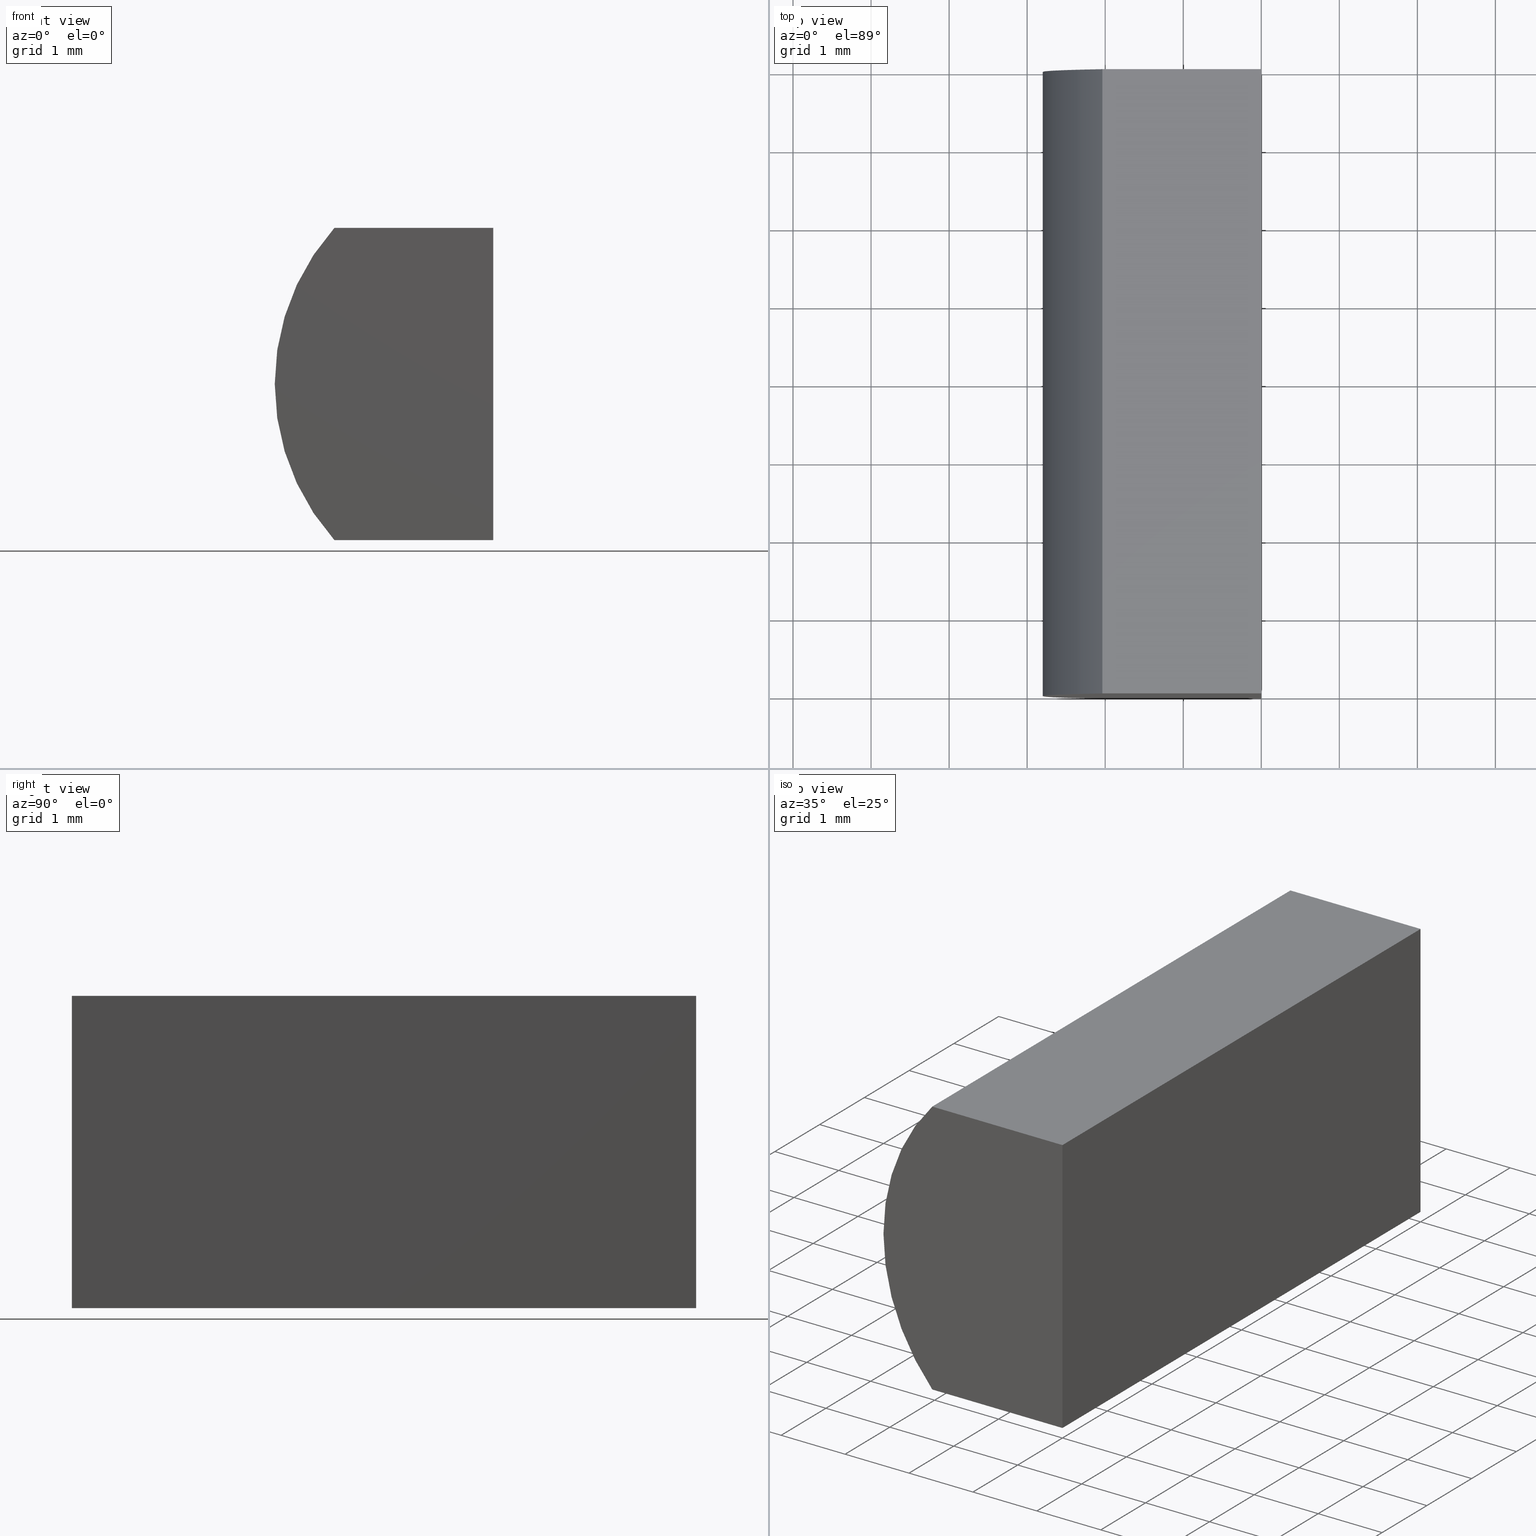
[diagram: canonical four-view strip — front | top / right | iso, engineering-drawing reading convention]
A machine part, canonical four-view strip (front | top / right | iso — engineering-drawing reading convention). The complete STEP part file that produces these views, byte-faithful:
ISO-10303-21;
HEADER;
FILE_DESCRIPTION (( 'STEP AP214' ),
    '1' );
FILE_NAME ('155004.STEP',
    '2019-06-14T05:39:15',
    ( 'user' ),
    ( '΢���й�' ),
    'SwSTEP 2.0',
    'SolidWorks 2016',
    '' );
FILE_SCHEMA (( 'AUTOMOTIVE_DESIGN' ));
ENDSEC;

DATA;
#1 = PLANE ( 'NONE',  #70 ) ;
#2 = EDGE_CURVE ( 'NONE', #172, #158, #85, .T. ) ;
#3 = STYLED_ITEM ( 'NONE', ( #55 ), #11 ) ;
#4 = ORIENTED_EDGE ( 'NONE', *, *, #24, .T. ) ;
#5 = PRODUCT_DEFINITION_CONTEXT ( 'detailed design', #146, 'design' ) ;
#6 = DIRECTION ( 'NONE',  ( 0.0000000000000000000, 1.000000000000000000, 0.0000000000000000000 ) ) ;
#7 = CARTESIAN_POINT ( 'NONE',  ( 0.0000000000000000000, 0.0000000000000000000, 4.000000000000000000 ) ) ;
#8 = AXIS2_PLACEMENT_3D ( 'NONE', #155, #36, #48 ) ;
#9 = DIRECTION ( 'NONE',  ( 0.0000000000000000000, -0.0000000000000000000, 1.000000000000000000 ) ) ;
#10 = ORIENTED_EDGE ( 'NONE', *, *, #201, .F. ) ;
#11 = MANIFOLD_SOLID_BREP ( '͹̨-����1', #186 ) ;
#12 = CARTESIAN_POINT ( 'NONE',  ( -2.036067977499788700, 8.000000000000000000, 4.000000000000000000 ) ) ;
#13 = PRESENTATION_STYLE_ASSIGNMENT (( #123 ) ) ;
#14 = VECTOR ( 'NONE', #162, 1000.000000000000000 ) ;
#15 = PRODUCT_DEFINITION_FORMATION_WITH_SPECIFIED_SOURCE ( '�κ�', '', #64, .NOT_KNOWN. ) ;
#16 = EDGE_CURVE ( 'NONE', #37, #117, #151, .T. ) ;
#17 = VECTOR ( 'NONE', #39, 1000.000000000000000 ) ;
#18 = DIRECTION ( 'NONE',  ( 0.0000000000000000000, 1.000000000000000000, 0.0000000000000000000 ) ) ;
#19 = CARTESIAN_POINT ( 'NONE',  ( 0.0000000000000000000, 0.0000000000000000000, 0.0000000000000000000 ) ) ;
#20 = VECTOR ( 'NONE', #89, 1000.000000000000000 ) ;
#21 = STYLED_ITEM ( 'NONE', ( #13 ), #152 ) ;
#22 = FACE_OUTER_BOUND ( 'NONE', #143, .T. ) ;
#23 = CARTESIAN_POINT ( 'NONE',  ( -2.036067977499787900, 8.000000000000000000, -4.336808689942017700E-016 ) ) ;
#24 = EDGE_CURVE ( 'NONE', #172, #33, #69, .T. ) ;
#25 = SURFACE_SIDE_STYLE ('',( #49 ) ) ;
#26 = SHAPE_DEFINITION_REPRESENTATION ( #110, #152 ) ;
#27 = ORIENTED_EDGE ( 'NONE', *, *, #71, .F. ) ;
#28 = PLANE ( 'NONE',  #78 ) ;
#29 = CARTESIAN_POINT ( 'NONE',  ( 0.0000000000000000000, 8.000000000000000000, 0.0000000000000000000 ) ) ;
#30 = EDGE_CURVE ( 'NONE', #132, #32, #179, .T. ) ;
#31 = ORIENTED_EDGE ( 'NONE', *, *, #24, .F. ) ;
#32 = VERTEX_POINT ( 'NONE', #148 ) ;
#33 = VERTEX_POINT ( 'NONE', #149 ) ;
#34 = CARTESIAN_POINT ( 'NONE',  ( 0.2000000000000005100, 0.0000000000000000000, 2.000000000000000000 ) ) ;
#35 =( GEOMETRIC_REPRESENTATION_CONTEXT ( 3 ) GLOBAL_UNCERTAINTY_ASSIGNED_CONTEXT ( ( #202 ) ) GLOBAL_UNIT_ASSIGNED_CONTEXT ( ( #54, #42, #171 ) ) REPRESENTATION_CONTEXT ( 'NONE', 'WORKASPACE' ) );
#36 = DIRECTION ( 'NONE',  ( 0.0000000000000000000, 0.0000000000000000000, -1.000000000000000000 ) ) ;
#37 = VERTEX_POINT ( 'NONE', #145 ) ;
#38 = VECTOR ( 'NONE', #102, 1000.000000000000000 ) ;
#39 = DIRECTION ( 'NONE',  ( 1.000000000000000000, -0.0000000000000000000, -0.0000000000000000000 ) ) ;
#40 = LINE ( 'NONE', #44, #72 ) ;
#41 = FACE_OUTER_BOUND ( 'NONE', #193, .T. ) ;
#42 =( NAMED_UNIT ( * ) PLANE_ANGLE_UNIT ( ) SI_UNIT ( $, .RADIAN. ) );
#43 = CARTESIAN_POINT ( 'NONE',  ( 0.0000000000000000000, 8.000000000000000000, 0.0000000000000000000 ) ) ;
#44 = CARTESIAN_POINT ( 'NONE',  ( 0.0000000000000000000, 8.000000000000000000, 4.000000000000000000 ) ) ;
#45 = ORIENTED_EDGE ( 'NONE', *, *, #71, .T. ) ;
#46 = FACE_OUTER_BOUND ( 'NONE', #174, .T. ) ;
#47 = ADVANCED_FACE ( 'NONE', ( #46 ), #135, .F. ) ;
#48 = DIRECTION ( 'NONE',  ( -1.000000000000000000, 0.0000000000000000000, -0.0000000000000000000 ) ) ;
#49 = SURFACE_STYLE_FILL_AREA ( #96 ) ;
#50 = ADVANCED_FACE ( 'NONE', ( #22 ), #98, .F. ) ;
#51 = CARTESIAN_POINT ( 'NONE',  ( 0.0000000000000000000, 8.000000000000000000, 0.0000000000000000000 ) ) ;
#52 = FACE_OUTER_BOUND ( 'NONE', #178, .T. ) ;
#53 = MECHANICAL_DESIGN_GEOMETRIC_PRESENTATION_REPRESENTATION (  '', ( #21 ), #106 ) ;
#54 =( LENGTH_UNIT ( ) NAMED_UNIT ( * ) SI_UNIT ( .MILLI., .METRE. ) );
#55 = PRESENTATION_STYLE_ASSIGNMENT (( #175 ) ) ;
#56 = DIRECTION ( 'NONE',  ( 0.0000000000000000000, 0.0000000000000000000, 1.000000000000000000 ) ) ;
#57 = ORIENTED_EDGE ( 'NONE', *, *, #75, .F. ) ;
#58 = DIRECTION ( 'NONE',  ( 0.0000000000000000000, 0.0000000000000000000, -1.000000000000000000 ) ) ;
#59 = APPLICATION_PROTOCOL_DEFINITION ( 'draft international standard', 'automotive_design', 1998, #163 ) ;
#60 = ORIENTED_EDGE ( 'NONE', *, *, #30, .F. ) ;
#61 = UNCERTAINTY_MEASURE_WITH_UNIT (LENGTH_MEASURE( 1.000000000000000100E-005 ), #139, 'distance_accuracy_value', 'NONE');
#62 = EDGE_CURVE ( 'NONE', #158, #87, #107, .T. ) ;
#63 = ORIENTED_EDGE ( 'NONE', *, *, #83, .F. ) ;
#64 = PRODUCT ( '155004', '155004', '', ( #160 ) ) ;
#65 = AXIS2_PLACEMENT_3D ( 'NONE', #94, #81, #118 ) ;
#66 = LINE ( 'NONE', #51, #90 ) ;
#67 = EDGE_CURVE ( 'NONE', #87, #117, #105, .T. ) ;
#68 = FILL_AREA_STYLE_COLOUR ( '', #168 ) ;
#69 = LINE ( 'NONE', #159, #170 ) ;
#70 = AXIS2_PLACEMENT_3D ( 'NONE', #115, #6, #9 ) ;
#71 = EDGE_CURVE ( 'NONE', #33, #37, #113, .T. ) ;
#72 = VECTOR ( 'NONE', #120, 1000.000000000000000 ) ;
#73 = AXIS2_PLACEMENT_3D ( 'NONE', #34, #192, #134 ) ;
#74 = CARTESIAN_POINT ( 'NONE',  ( 0.0000000000000000000, 8.000000000000000000, 0.0000000000000000000 ) ) ;
#75 = EDGE_CURVE ( 'NONE', #87, #132, #66, .T. ) ;
#76 = CARTESIAN_POINT ( 'NONE',  ( 0.0000000000000000000, 8.000000000000000000, 0.0000000000000000000 ) ) ;
#77 = ORIENTED_EDGE ( 'NONE', *, *, #30, .T. ) ;
#78 = AXIS2_PLACEMENT_3D ( 'NONE', #109, #18, #95 ) ;
#79 = ORIENTED_EDGE ( 'NONE', *, *, #62, .T. ) ;
#80 = EDGE_CURVE ( 'NONE', #158, #37, #40, .T. ) ;
#81 = DIRECTION ( 'NONE',  ( 0.0000000000000000000, 0.0000000000000000000, 1.000000000000000000 ) ) ;
#82 = ORIENTED_EDGE ( 'NONE', *, *, #2, .F. ) ;
#83 = EDGE_CURVE ( 'NONE', #132, #172, #136, .T. ) ;
#84 = DIRECTION ( 'NONE',  ( -1.000000000000000000, 0.0000000000000000000, 0.0000000000000000000 ) ) ;
#85 = LINE ( 'NONE', #199, #17 ) ;
#86 = ORIENTED_EDGE ( 'NONE', *, *, #75, .T. ) ;
#87 = VERTEX_POINT ( 'NONE', #198 ) ;
#88 = ADVANCED_FACE ( 'NONE', ( #114 ), #156, .T. ) ;
#89 = DIRECTION ( 'NONE',  ( -0.0000000000000000000, -0.0000000000000000000, -1.000000000000000000 ) ) ;
#90 = VECTOR ( 'NONE', #84, 1000.000000000000000 ) ;
#91 = EDGE_LOOP ( 'NONE', ( #10, #190, #27, #99 ) ) ;
#92 = ORIENTED_EDGE ( 'NONE', *, *, #201, .T. ) ;
#93 = MECHANICAL_DESIGN_GEOMETRIC_PRESENTATION_REPRESENTATION (  '', ( #3 ), #141 ) ;
#94 = CARTESIAN_POINT ( 'NONE',  ( 0.0000000000000000000, 0.0000000000000000000, 0.0000000000000000000 ) ) ;
#95 = DIRECTION ( 'NONE',  ( 0.0000000000000000000, -0.0000000000000000000, 1.000000000000000000 ) ) ;
#96 = FILL_AREA_STYLE ('',( #68 ) ) ;
#97 = PRODUCT_DEFINITION ( 'δ֪', '', #15, #5 ) ;
#98 = PLANE ( 'NONE',  #8 ) ;
#99 = ORIENTED_EDGE ( 'NONE', *, *, #180, .F. ) ;
#100 =( NAMED_UNIT ( * ) PLANE_ANGLE_UNIT ( ) SI_UNIT ( $, .RADIAN. ) );
#101 = CARTESIAN_POINT ( 'NONE',  ( 0.0000000000000000000, 0.0000000000000000000, 0.0000000000000000000 ) ) ;
#102 = DIRECTION ( 'NONE',  ( -1.000000000000000000, 0.0000000000000000000, 0.0000000000000000000 ) ) ;
#103 = CARTESIAN_POINT ( 'NONE',  ( -2.036067977499787900, 8.000000000000000000, -4.336808689942017700E-016 ) ) ;
#104 = APPLICATION_PROTOCOL_DEFINITION ( 'draft international standard', 'automotive_design', 1998, #146 ) ;
#105 = LINE ( 'NONE', #43, #191 ) ;
#106 =( GEOMETRIC_REPRESENTATION_CONTEXT ( 3 ) GLOBAL_UNCERTAINTY_ASSIGNED_CONTEXT ( ( #184 ) ) GLOBAL_UNIT_ASSIGNED_CONTEXT ( ( #196, #100, #188 ) ) REPRESENTATION_CONTEXT ( 'NONE', 'WORKASPACE' ) );
#107 = LINE ( 'NONE', #74, #20 ) ;
#108 = FACE_OUTER_BOUND ( 'NONE', #91, .T. ) ;
#109 = CARTESIAN_POINT ( 'NONE',  ( 0.2000000000000005100, 8.000000000000000000, 2.000000000000000000 ) ) ;
#110 = PRODUCT_DEFINITION_SHAPE ( 'NONE', 'NONE',  #97 ) ;
#111 = DIRECTION ( 'NONE',  ( 0.0000000000000000000, -0.0000000000000000000, 1.000000000000000000 ) ) ;
#112 = PLANE ( 'NONE',  #154 ) ;
#113 = LINE ( 'NONE', #7, #14 ) ;
#114 = FACE_OUTER_BOUND ( 'NONE', #140, .T. ) ;
#115 = CARTESIAN_POINT ( 'NONE',  ( 0.2000000000000005100, 0.0000000000000000000, 2.000000000000000000 ) ) ;
#116 = DIRECTION ( 'NONE',  ( -1.000000000000000000, 0.0000000000000000000, 0.0000000000000000000 ) ) ;
#117 = VERTEX_POINT ( 'NONE', #19 ) ;
#118 = DIRECTION ( 'NONE',  ( 1.000000000000000000, 0.0000000000000000000, 0.0000000000000000000 ) ) ;
#119 = PRODUCT_RELATED_PRODUCT_CATEGORY ( 'part', '', ( #64 ) ) ;
#120 = DIRECTION ( 'NONE',  ( -0.0000000000000000000, -1.000000000000000000, -0.0000000000000000000 ) ) ;
#121 = ORIENTED_EDGE ( 'NONE', *, *, #67, .T. ) ;
#122 = ORIENTED_EDGE ( 'NONE', *, *, #67, .F. ) ;
#123 = SURFACE_STYLE_USAGE ( .BOTH. , #25 ) ;
#124 = DIRECTION ( 'NONE',  ( 0.0000000000000000000, 1.000000000000000000, 0.0000000000000000000 ) ) ;
#125 = AXIS2_PLACEMENT_3D ( 'NONE', #185, #182, #58 ) ;
#126 = FILL_AREA_STYLE_COLOUR ( '', #130 ) ;
#127 = ORIENTED_EDGE ( 'NONE', *, *, #16, .T. ) ;
#128 = ORIENTED_EDGE ( 'NONE', *, *, #62, .F. ) ;
#129 = ORIENTED_EDGE ( 'NONE', *, *, #80, .F. ) ;
#130 = COLOUR_RGB ( '',1.000000000000000000, 1.000000000000000000, 1.000000000000000000 ) ;
#131 = DIRECTION ( 'NONE',  ( -0.0000000000000000000, -1.000000000000000000, -0.0000000000000000000 ) ) ;
#132 = VERTEX_POINT ( 'NONE', #23 ) ;
#133 = FILL_AREA_STYLE ('',( #126 ) ) ;
#134 = DIRECTION ( 'NONE',  ( 0.0000000000000000000, 0.0000000000000000000, 1.000000000000000000 ) ) ;
#135 = PLANE ( 'NONE',  #176 ) ;
#136 = CIRCLE ( 'NONE', #195, 2.999999999999999100 ) ;
#137 = DIRECTION ( 'NONE',  ( -0.0000000000000000000, -1.000000000000000000, -0.0000000000000000000 ) ) ;
#138 = DIRECTION ( 'NONE',  ( -0.0000000000000000000, -0.0000000000000000000, -1.000000000000000000 ) ) ;
#139 =( LENGTH_UNIT ( ) NAMED_UNIT ( * ) SI_UNIT ( .MILLI., .METRE. ) );
#140 = EDGE_LOOP ( 'NONE', ( #166, #31, #63, #77 ) ) ;
#141 =( GEOMETRIC_REPRESENTATION_CONTEXT ( 3 ) GLOBAL_UNCERTAINTY_ASSIGNED_CONTEXT ( ( #61 ) ) GLOBAL_UNIT_ASSIGNED_CONTEXT ( ( #139, #150, #144 ) ) REPRESENTATION_CONTEXT ( 'NONE', 'WORKASPACE' ) );
#142 = CIRCLE ( 'NONE', #73, 2.999999999999999100 ) ;
#143 = EDGE_LOOP ( 'NONE', ( #45, #129, #82, #4 ) ) ;
#144 =( NAMED_UNIT ( * ) SI_UNIT ( $, .STERADIAN. ) SOLID_ANGLE_UNIT ( ) );
#145 = CARTESIAN_POINT ( 'NONE',  ( 0.0000000000000000000, 0.0000000000000000000, 4.000000000000000000 ) ) ;
#146 = APPLICATION_CONTEXT ( 'automotive_design' ) ;
#147 = CARTESIAN_POINT ( 'NONE',  ( 0.0000000000000000000, 0.0000000000000000000, 0.0000000000000000000 ) ) ;
#148 = CARTESIAN_POINT ( 'NONE',  ( -2.036067977499787900, 0.0000000000000000000, -4.336808689942017700E-016 ) ) ;
#149 = CARTESIAN_POINT ( 'NONE',  ( -2.036067977499788700, 0.0000000000000000000, 4.000000000000000000 ) ) ;
#150 =( NAMED_UNIT ( * ) PLANE_ANGLE_UNIT ( ) SI_UNIT ( $, .RADIAN. ) );
#151 = LINE ( 'NONE', #147, #169 ) ;
#152 = ADVANCED_BREP_SHAPE_REPRESENTATION ( '155004', ( #11, #65 ), #35 ) ;
#153 = SURFACE_STYLE_FILL_AREA ( #133 ) ;
#154 = AXIS2_PLACEMENT_3D ( 'NONE', #76, #111, #164 ) ;
#155 = CARTESIAN_POINT ( 'NONE',  ( 0.0000000000000000000, 8.000000000000000000, 4.000000000000000000 ) ) ;
#156 = CYLINDRICAL_SURFACE ( 'NONE', #125, 2.999999999999999600 ) ;
#157 = PRESENTATION_LAYER_ASSIGNMENT (  '', '', ( #21 ) ) ;
#158 = VERTEX_POINT ( 'NONE', #173 ) ;
#159 = CARTESIAN_POINT ( 'NONE',  ( -2.036067977499788700, 8.000000000000000000, 4.000000000000000000 ) ) ;
#160 = PRODUCT_CONTEXT ( 'NONE', #163, 'mechanical' ) ;
#161 = ADVANCED_FACE ( 'NONE', ( #108 ), #1, .F. ) ;
#162 = DIRECTION ( 'NONE',  ( 1.000000000000000000, -0.0000000000000000000, -0.0000000000000000000 ) ) ;
#163 = APPLICATION_CONTEXT ( 'automotive_design' ) ;
#164 = DIRECTION ( 'NONE',  ( 1.000000000000000000, 0.0000000000000000000, -0.0000000000000000000 ) ) ;
#165 = ADVANCED_FACE ( 'NONE', ( #41 ), #28, .T. ) ;
#166 = ORIENTED_EDGE ( 'NONE', *, *, #180, .T. ) ;
#167 = DIRECTION ( 'NONE',  ( -0.0000000000000000000, -1.000000000000000000, -0.0000000000000000000 ) ) ;
#168 = COLOUR_RGB ( '',1.000000000000000000, 1.000000000000000000, 1.000000000000000000 ) ;
#169 = VECTOR ( 'NONE', #138, 1000.000000000000000 ) ;
#170 = VECTOR ( 'NONE', #137, 1000.000000000000000 ) ;
#171 =( NAMED_UNIT ( * ) SI_UNIT ( $, .STERADIAN. ) SOLID_ANGLE_UNIT ( ) );
#172 = VERTEX_POINT ( 'NONE', #12 ) ;
#173 = CARTESIAN_POINT ( 'NONE',  ( 0.0000000000000000000, 8.000000000000000000, 4.000000000000000000 ) ) ;
#174 = EDGE_LOOP ( 'NONE', ( #127, #122, #128, #204 ) ) ;
#175 = SURFACE_STYLE_USAGE ( .BOTH. , #177 ) ;
#176 = AXIS2_PLACEMENT_3D ( 'NONE', #29, #116, #189 ) ;
#177 = SURFACE_SIDE_STYLE ('',( #153 ) ) ;
#178 = EDGE_LOOP ( 'NONE', ( #92, #60, #57, #121 ) ) ;
#179 = LINE ( 'NONE', #103, #194 ) ;
#180 = EDGE_CURVE ( 'NONE', #32, #33, #142, .T. ) ;
#181 = ORIENTED_EDGE ( 'NONE', *, *, #2, .T. ) ;
#182 = DIRECTION ( 'NONE',  ( -0.0000000000000000000, -1.000000000000000000, -0.0000000000000000000 ) ) ;
#183 = CARTESIAN_POINT ( 'NONE',  ( 0.2000000000000005100, 8.000000000000000000, 2.000000000000000000 ) ) ;
#184 = UNCERTAINTY_MEASURE_WITH_UNIT (LENGTH_MEASURE( 1.000000000000000100E-005 ), #196, 'distance_accuracy_value', 'NONE');
#185 = CARTESIAN_POINT ( 'NONE',  ( 0.2000000000000005100, 8.000000000000000000, 2.000000000000000000 ) ) ;
#186 = CLOSED_SHELL ( 'NONE', ( #187, #88, #50, #47, #165, #161 ) ) ;
#187 = ADVANCED_FACE ( 'NONE', ( #52 ), #112, .F. ) ;
#188 =( NAMED_UNIT ( * ) SI_UNIT ( $, .STERADIAN. ) SOLID_ANGLE_UNIT ( ) );
#189 = DIRECTION ( 'NONE',  ( 0.0000000000000000000, 0.0000000000000000000, 1.000000000000000000 ) ) ;
#190 = ORIENTED_EDGE ( 'NONE', *, *, #16, .F. ) ;
#191 = VECTOR ( 'NONE', #131, 1000.000000000000000 ) ;
#192 = DIRECTION ( 'NONE',  ( 0.0000000000000000000, 1.000000000000000000, 0.0000000000000000000 ) ) ;
#193 = EDGE_LOOP ( 'NONE', ( #86, #200, #181, #79 ) ) ;
#194 = VECTOR ( 'NONE', #167, 1000.000000000000000 ) ;
#195 = AXIS2_PLACEMENT_3D ( 'NONE', #183, #124, #56 ) ;
#196 =( LENGTH_UNIT ( ) NAMED_UNIT ( * ) SI_UNIT ( .MILLI., .METRE. ) );
#197 = PRESENTATION_LAYER_ASSIGNMENT (  '', '', ( #3 ) ) ;
#198 = CARTESIAN_POINT ( 'NONE',  ( 0.0000000000000000000, 8.000000000000000000, 0.0000000000000000000 ) ) ;
#199 = CARTESIAN_POINT ( 'NONE',  ( 0.0000000000000000000, 8.000000000000000000, 4.000000000000000000 ) ) ;
#200 = ORIENTED_EDGE ( 'NONE', *, *, #83, .T. ) ;
#201 = EDGE_CURVE ( 'NONE', #117, #32, #203, .T. ) ;
#202 = UNCERTAINTY_MEASURE_WITH_UNIT (LENGTH_MEASURE( 1.000000000000000100E-005 ), #54, 'distance_accuracy_value', 'NONE');
#203 = LINE ( 'NONE', #101, #38 ) ;
#204 = ORIENTED_EDGE ( 'NONE', *, *, #80, .T. ) ;
ENDSEC;
END-ISO-10303-21;
